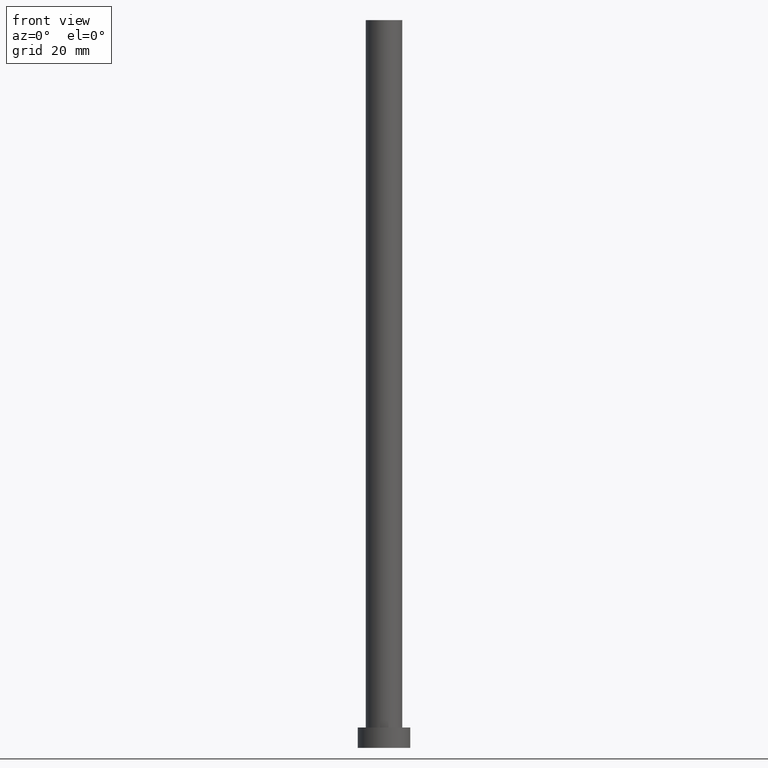
[diagram: clean part render]
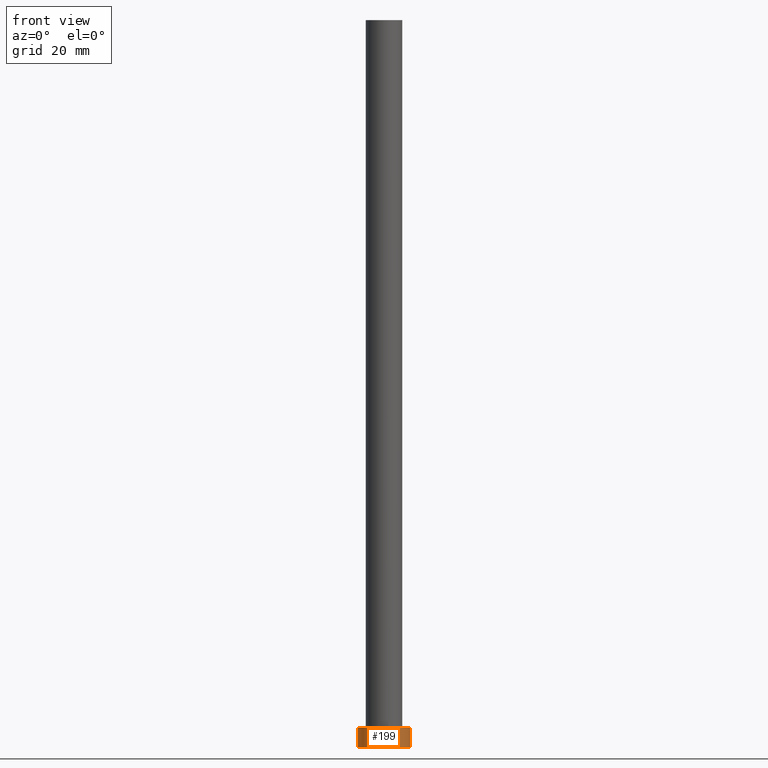
[diagram: same view with one face highlighted and labeled with its STEP entity id]
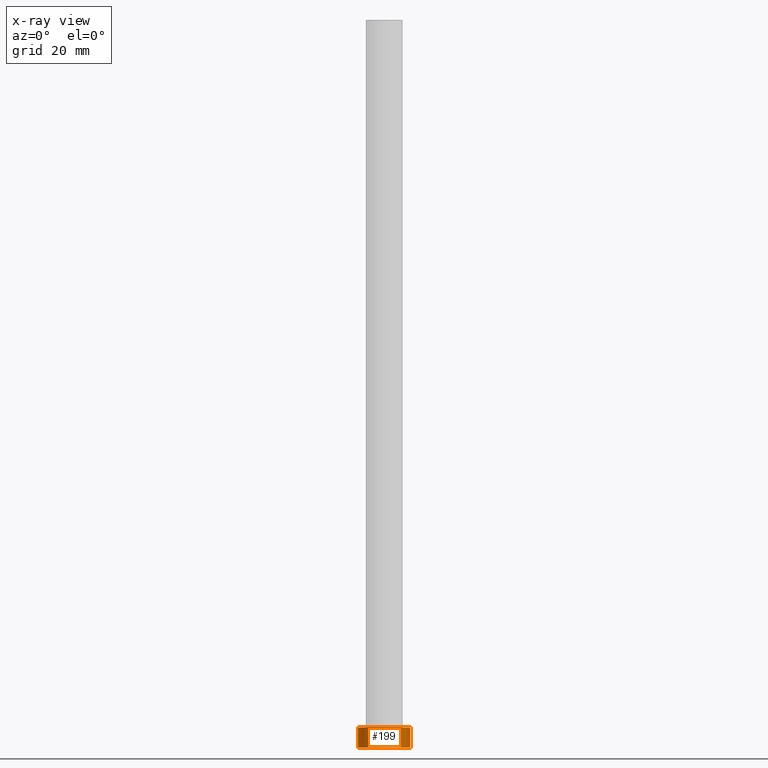
[diagram: x-ray of the same camera — body ghosted, the highlighted face saturated]
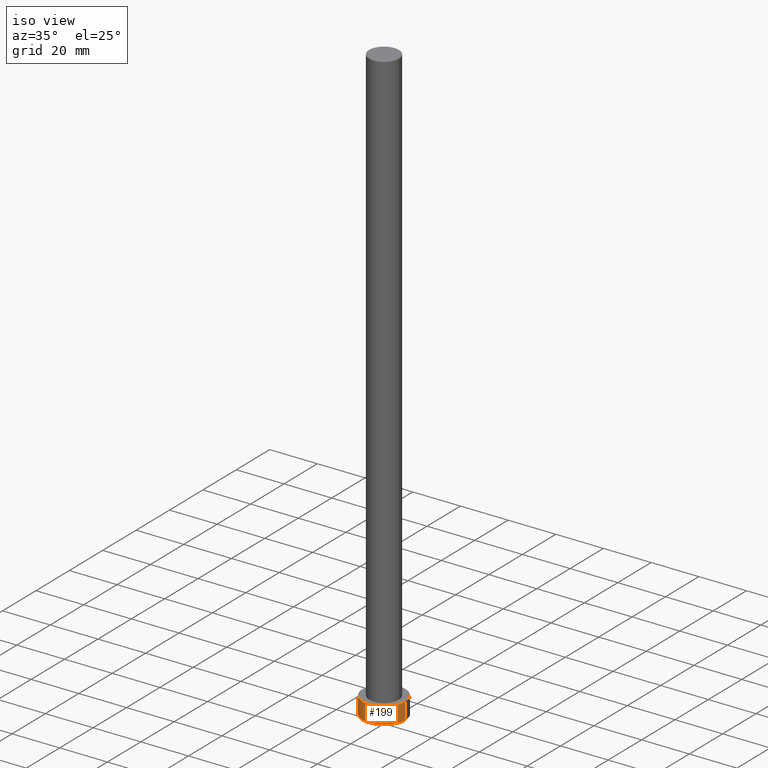
[diagram: same view with one face highlighted and labeled with its STEP entity id]
A machine part, front view. The second image highlights one B-rep face of the part: STEP entity #199.
The next image is the same camera in x-ray: the body ghosted, the highlighted face saturated — about 0% of this face is hidden behind the body in this view.
A second angle (iso view) of the same face is appended — the face is thin or edge-on in the first view.
In plain terms, the highlighted cylindrical surface (edge-blend (fillet) strip) has radius 9 mm, axis along (-0, -0, -1).
Its self-contained STEP definition (entity closure, byte-faithful):
#14 = VERTEX_POINT ( 'NONE', #46 ) ;
#22 = VECTOR ( 'NONE', #73, 1000.000000000000000 ) ;
#23 = CARTESIAN_POINT ( 'NONE',  ( 0.000000000000000000, 0.000000000000000000, 7.000000000000000000 ) ) ;
#25 = CIRCLE ( 'NONE', #60, 9.000000000000000000 ) ;
#42 = VECTOR ( 'NONE', #249, 1000.000000000000000 ) ;
#43 = DIRECTION ( 'NONE',  ( 1.000000000000000000, 0.000000000000000000, 0.000000000000000000 ) ) ;
#46 = CARTESIAN_POINT ( 'NONE',  ( 9.000000000000000000, 1.102182119232617714E-15, 7.000000000000000000 ) ) ;
#60 = AXIS2_PLACEMENT_3D ( 'NONE', #23, #195, #194 ) ;
#65 = AXIS2_PLACEMENT_3D ( 'NONE', #117, #192, #43 ) ;
#69 = EDGE_CURVE ( 'NONE', #233, #171, #173, .T. ) ;
#73 = DIRECTION ( 'NONE',  ( -0.000000000000000000, -0.000000000000000000, -1.000000000000000000 ) ) ;
#74 = ORIENTED_EDGE ( 'NONE', *, *, #175, .F. ) ;
#81 = EDGE_LOOP ( 'NONE', ( #74, #190, #208, #254 ) ) ;
#92 = DIRECTION ( 'NONE',  ( -1.000000000000000000, 0.000000000000000000, 0.000000000000000000 ) ) ;
#94 = CYLINDRICAL_SURFACE ( 'NONE', #140, 9.000000000000000000 ) ;
#97 = FACE_OUTER_BOUND ( 'NONE', #81, .T. ) ;
#107 = CARTESIAN_POINT ( 'NONE',  ( -9.000000000000000000, 0.000000000000000000, 7.000000000000000000 ) ) ;
#114 = EDGE_CURVE ( 'NONE', #217, #14, #25, .T. ) ;
#117 = CARTESIAN_POINT ( 'NONE',  ( 0.000000000000000000, 0.000000000000000000, 0.000000000000000000 ) ) ;
#140 = AXIS2_PLACEMENT_3D ( 'NONE', #247, #250, #92 ) ;
#147 = CARTESIAN_POINT ( 'NONE',  ( -9.000000000000000000, 0.000000000000000000, 7.000000000000000000 ) ) ;
#161 = CARTESIAN_POINT ( 'NONE',  ( -9.000000000000000000, 0.000000000000000000, 0.000000000000000000 ) ) ;
#165 = CARTESIAN_POINT ( 'NONE',  ( 9.000000000000000000, 1.102182119232617714E-15, 0.000000000000000000 ) ) ;
#171 = VERTEX_POINT ( 'NONE', #165 ) ;
#173 = CIRCLE ( 'NONE', #65, 9.000000000000000000 ) ;
#175 = EDGE_CURVE ( 'NONE', #14, #171, #225, .T. ) ;
#190 = ORIENTED_EDGE ( 'NONE', *, *, #114, .F. ) ;
#192 = DIRECTION ( 'NONE',  ( 0.000000000000000000, 0.000000000000000000, 1.000000000000000000 ) ) ;
#193 = EDGE_CURVE ( 'NONE', #217, #233, #207, .T. ) ;
#194 = DIRECTION ( 'NONE',  ( 1.000000000000000000, 0.000000000000000000, 0.000000000000000000 ) ) ;
#195 = DIRECTION ( 'NONE',  ( 0.000000000000000000, 0.000000000000000000, 1.000000000000000000 ) ) ;
#199 = ADVANCED_FACE ( 'NONE', ( #97 ), #94, .T. ) ;
#207 = LINE ( 'NONE', #107, #22 ) ;
#208 = ORIENTED_EDGE ( 'NONE', *, *, #193, .T. ) ;
#217 = VERTEX_POINT ( 'NONE', #147 ) ;
#225 = LINE ( 'NONE', #232, #42 ) ;
#232 = CARTESIAN_POINT ( 'NONE',  ( 9.000000000000000000, 1.102182119232617714E-15, 7.000000000000000000 ) ) ;
#233 = VERTEX_POINT ( 'NONE', #161 ) ;
#247 = CARTESIAN_POINT ( 'NONE',  ( 0.000000000000000000, 0.000000000000000000, 7.000000000000000000 ) ) ;
#249 = DIRECTION ( 'NONE',  ( -0.000000000000000000, -0.000000000000000000, -1.000000000000000000 ) ) ;
#250 = DIRECTION ( 'NONE',  ( -0.000000000000000000, -0.000000000000000000, -1.000000000000000000 ) ) ;
#254 = ORIENTED_EDGE ( 'NONE', *, *, #69, .T. ) ;